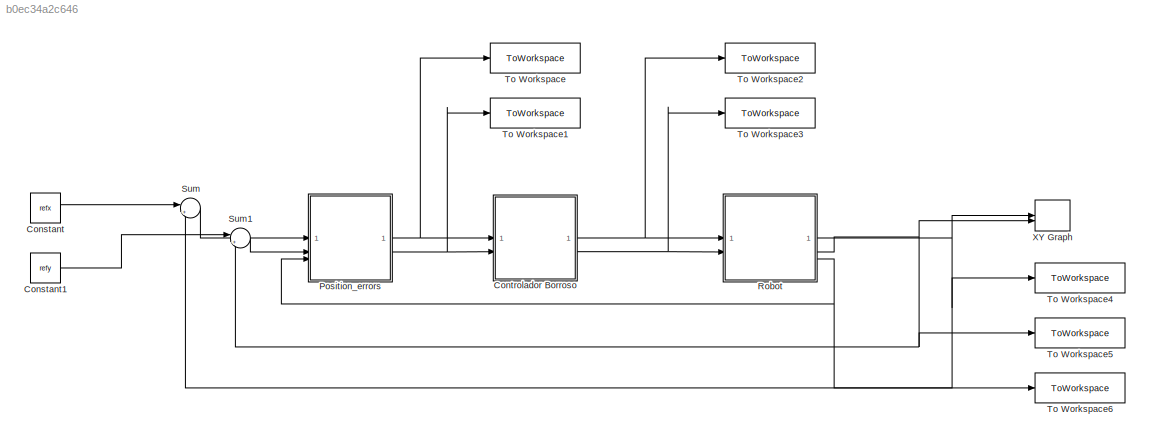
MODEL slx_b0ec34a2c646
KIND model
CONFIG AbsTol = auto
CONFIG EnableMultiTasking = off
CONFIG FixedStep = Ts
CONFIG MaxStep = auto
CONFIG MinStep = auto
CONFIG RelTol = 1e-3
CONFIG SampleTimeConstraint = Unconstrained
CONFIG SolverName = FixedStepAuto
CONFIG StartTime = 0.0
CONFIG StopTime = 100.0
BLOCK [Constant] Constant
  Value = refx
BLOCK [Constant] Constant1
  Value = refy
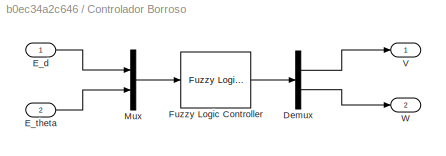
BLOCK [SubSystem] Controlador Borroso
BLOCK [Demux] Controlador Borroso/Demux
  Outputs = 2
BLOCK [Inport] Controlador Borroso/E_d
BLOCK [Inport] Controlador Borroso/E_theta
  Port = 2
BLOCK [Reference] Controlador Borroso/Fuzzy Logic Controller  REF=fuzblock/Fuzzy Logic   (lib defined in mdl_858b3b3e7478)
Controller
  SourceBlock = fuzblock/Fuzzy Logic \nController
  SourceType = Fuzzy Inference System
BLOCK [Mux] Controlador Borroso/Mux
  DisplayOption = bar
  Inputs = 2
BLOCK [Outport] Controlador Borroso/V
BLOCK [Outport] Controlador Borroso/W
  Port = 2
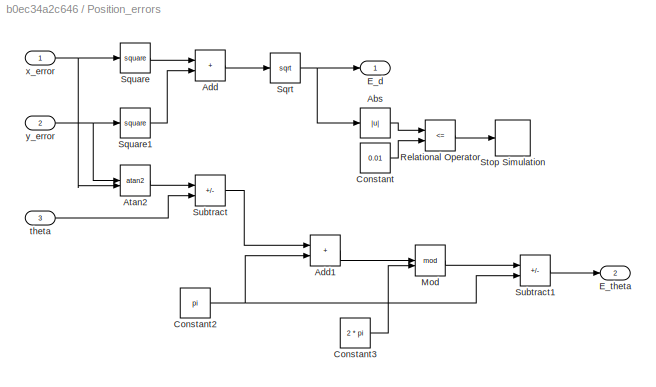
BLOCK [SubSystem] Position_errors
BLOCK [Abs] Position_errors/Abs
  SaturateOnIntegerOverflow = off
BLOCK [Sum] Position_errors/Add
  IconShape = rectangular
BLOCK [Sum] Position_errors/Add1
  IconShape = rectangular
BLOCK [Trigonometry] Position_errors/Atan2
  Operator = atan2
BLOCK [Constant] Position_errors/Constant
  Value = 0.01
BLOCK [Constant] Position_errors/Constant2
  Value = pi
BLOCK [Constant] Position_errors/Constant3
  Value = 2 * pi
BLOCK [Outport] Position_errors/E_d
BLOCK [Outport] Position_errors/E_theta
  Port = 2
BLOCK [Math] Position_errors/Mod
  Operator = mod
BLOCK [RelationalOperator] Position_errors/Relational Operator
  InputSameDT = off
  Operator = <=
  OutDataTypeStr = boolean
  RndMeth = Simplest
BLOCK [Sqrt] Position_errors/Sqrt
BLOCK [Math] Position_errors/Square
  Operator = square
BLOCK [Math] Position_errors/Square1
  Operator = square
BLOCK [Stop] Position_errors/Stop Simulation
BLOCK [Sum] Position_errors/Subtract
  IconShape = rectangular
  Inputs = +-
BLOCK [Sum] Position_errors/Subtract1
  IconShape = rectangular
  Inputs = +-
BLOCK [Inport] Position_errors/theta
  Port = 3
BLOCK [Inport] Position_errors/x_error
BLOCK [Inport] Position_errors/y_error
  Port = 2
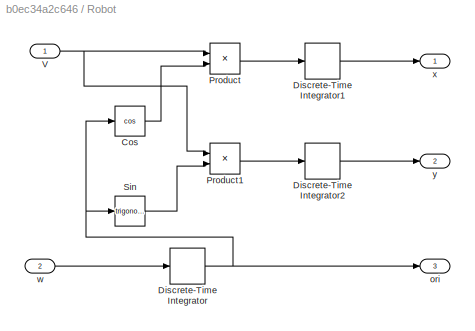
BLOCK [SubSystem] Robot
BLOCK [Trigonometry] Robot/Cos
  Operator = cos
BLOCK [DiscreteIntegrator] Robot/Discrete-Time Integrator
  ICPrevOutput = DiscIntNeverNeededParam
  ICPrevScaledInput = DiscIntNeverNeededParam
  InitialConditionSetting = Auto
  SampleTime = -1
BLOCK [DiscreteIntegrator] Robot/Discrete-Time Integrator1
  ICPrevOutput = DiscIntNeverNeededParam
  ICPrevScaledInput = DiscIntNeverNeededParam
  InitialConditionSetting = Auto
  SampleTime = -1
BLOCK [DiscreteIntegrator] Robot/Discrete-Time Integrator2
  ICPrevOutput = DiscIntNeverNeededParam
  ICPrevScaledInput = DiscIntNeverNeededParam
  InitialConditionSetting = Auto
  SampleTime = -1
BLOCK [Product] Robot/Product
BLOCK [Product] Robot/Product1
BLOCK [Trigonometry] Robot/Sin
BLOCK [Inport] Robot/V
BLOCK [Outport] Robot/ori
  Port = 3
BLOCK [Inport] Robot/w
  Port = 2
BLOCK [Outport] Robot/x
BLOCK [Outport] Robot/y
  Port = 2
BLOCK [Sum] Sum
  Inputs = |+-
BLOCK [Sum] Sum1
  Inputs = |+-
BLOCK [ToWorkspace] To Workspace
  FixptAsFi = on
  MaxDataPoints = inf
  SampleTime = -1
  SaveFormat = Timeseries
  VariableName = E_d
BLOCK [ToWorkspace] To Workspace1
  FixptAsFi = on
  MaxDataPoints = inf
  SampleTime = -1
  SaveFormat = Timeseries
  VariableName = E_theta
BLOCK [ToWorkspace] To Workspace2
  FixptAsFi = on
  MaxDataPoints = inf
  SampleTime = -1
  SaveFormat = Timeseries
  VariableName = V
BLOCK [ToWorkspace] To Workspace3
  FixptAsFi = on
  MaxDataPoints = inf
  SampleTime = -1
  SaveFormat = Timeseries
  VariableName = W
BLOCK [ToWorkspace] To Workspace4
  FixptAsFi = on
  MaxDataPoints = inf
  SampleTime = -1
  SaveFormat = Timeseries
  VariableName = salida_x
BLOCK [ToWorkspace] To Workspace5
  FixptAsFi = on
  MaxDataPoints = inf
  SampleTime = -1
  SaveFormat = Timeseries
  VariableName = salida_y
BLOCK [ToWorkspace] To Workspace6
  FixptAsFi = on
  MaxDataPoints = inf
  SampleTime = -1
  SaveFormat = Timeseries
  VariableName = salida_theta
BLOCK [Record] XY Graph
  CompatibilityTag = XY
  FileSettingsInternal = {"entries":[{"content":{"excelSettings":{"content":{},"type":"Streamout.ExcelSettings"}},"type":"Streamout.FileSettingStorage","uuid":""}],"packageUris":["http:\/\/schema.mathworks.com\/mf0\/streamout_blocks\/R2020a"],"version":"1.0"}
  Layout = [1 1]
  SignalsInternal = {"entries":[{"content":{"signals":[{"content":{"blockPath":[],"dimensions":[1],"domain":"","lineColor":"#a2142f","plots":[1],"port":1,"sid":[""],"signalID":8169,"signalName":"Robot:1"},"type":"RecordBlkView.Signal","uuid":""},{"content":{"blockPath":[],"dimensions":[1],"domain":"","lineColor":"#139fff","plots":[1],"port":2,"sid":[""],"signalID":8173,"signalName":"Robot:2"},"type":"RecordBlkView.Si...<+162ch>
  VisualizationBindings = {"xyplotplugin":{"info":[{"series":[{"bindingParametersList":[{"parameter":"X-Axis","signalID":8169,"signalName":"Robot:1"},{"parameter":"Y-Axis","signalID":8173,"signalName":"Robot:2"}],"seriesID":46637}],"subplotID":1}]}}
LINE Constant1:1 -> Sum1:1
LINE Constant:1 -> Sum:1
LINE Controlador Borroso/Demux:1 -> Controlador Borroso/V:1
LINE Controlador Borroso/Demux:2 -> Controlador Borroso/W:1
LINE Controlador Borroso/E_d:1 -> Controlador Borroso/Mux:1
LINE Controlador Borroso/E_theta:1 -> Controlador Borroso/Mux:2
LINE Controlador Borroso/Fuzzy Logic Controller:1 -> Controlador Borroso/Demux:1
LINE Controlador Borroso/Mux:1 -> Controlador Borroso/Fuzzy Logic Controller:1
NET Controlador Borroso:1 -> Robot:1, To Workspace2:1
NET Controlador Borroso:2 -> Robot:2, To Workspace3:1
LINE Position_errors/Abs:1 -> Position_errors/Relational Operator:1
LINE Position_errors/Add1:1 -> Position_errors/Mod:1
LINE Position_errors/Add:1 -> Position_errors/Sqrt:1
LINE Position_errors/Atan2:1 -> Position_errors/Subtract:1
NET Position_errors/Constant2:1 -> Position_errors/Add1:2, Position_errors/Subtract1:2
LINE Position_errors/Constant3:1 -> Position_errors/Mod:2
LINE Position_errors/Constant:1 -> Position_errors/Relational Operator:2
LINE Position_errors/Mod:1 -> Position_errors/Subtract1:1
LINE Position_errors/Relational Operator:1 -> Position_errors/Stop Simulation:1
NET Position_errors/Sqrt:1 -> Position_errors/Abs:1, Position_errors/E_d:1
LINE Position_errors/Square1:1 -> Position_errors/Add:2
LINE Position_errors/Square:1 -> Position_errors/Add:1
LINE Position_errors/Subtract1:1 -> Position_errors/E_theta:1
LINE Position_errors/Subtract:1 -> Position_errors/Add1:1
LINE Position_errors/theta:1 -> Position_errors/Subtract:2
NET Position_errors/x_error:1 -> Position_errors/Atan2:2, Position_errors/Square:1
NET Position_errors/y_error:1 -> Position_errors/Atan2:1, Position_errors/Square1:1
NET Position_errors:1 -> Controlador Borroso:1, To Workspace:1
NET Position_errors:2 -> Controlador Borroso:2, To Workspace1:1
LINE Robot/Cos:1 -> Robot/Product:2
LINE Robot/Discrete-Time Integrator1:1 -> Robot/x:1
LINE Robot/Discrete-Time Integrator2:1 -> Robot/y:1
NET Robot/Discrete-Time Integrator:1 -> Robot/Cos:1, Robot/Sin:1, Robot/ori:1
LINE Robot/Product1:1 -> Robot/Discrete-Time Integrator2:1
LINE Robot/Product:1 -> Robot/Discrete-Time Integrator1:1
LINE Robot/Sin:1 -> Robot/Product1:2
NET Robot/V:1 -> Robot/Product1:1, Robot/Product:1
LINE Robot/w:1 -> Robot/Discrete-Time Integrator:1
NET Robot:1 -> Sum:2, To Workspace4:1, XY Graph:1
NET Robot:2 -> Sum1:2, To Workspace5:1, XY Graph:2
NET Robot:3 -> Position_errors:3, To Workspace6:1
LINE Sum1:1 -> Position_errors:2
LINE Sum:1 -> Position_errors:1
note: NET lines group one-source signal fan-out (src -> all destinations, sorted); 1:1 wires keep LINE
